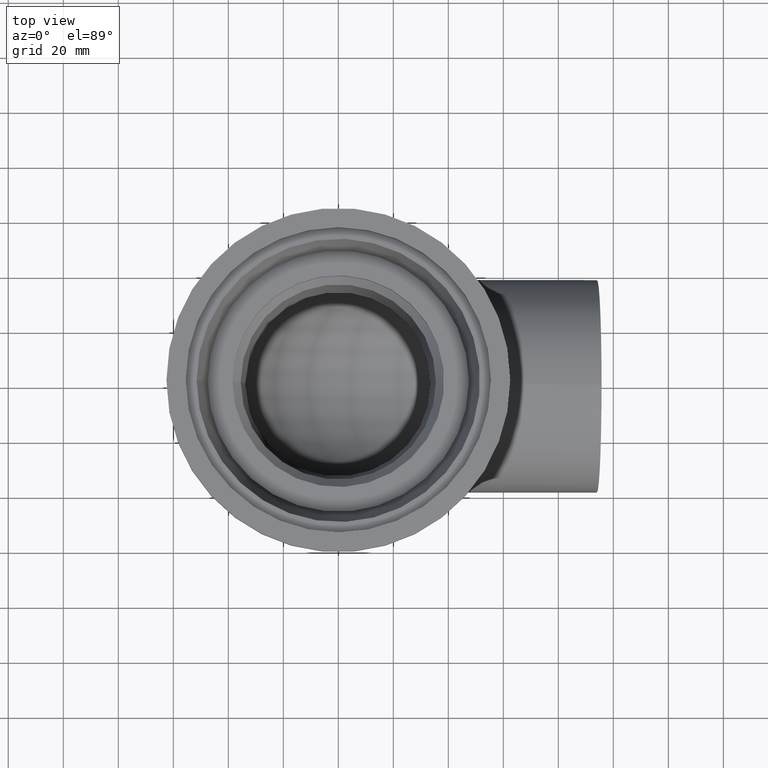
[diagram: clean part render]
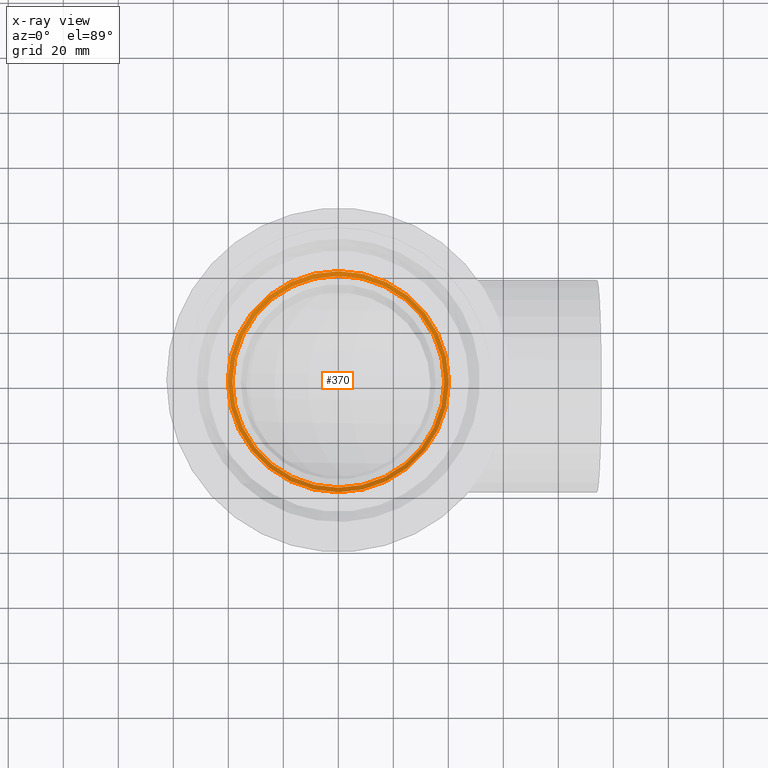
[diagram: x-ray — body ghosted, one internal face saturated and labeled with its STEP entity id]
A machine part, top view, then the same camera in x-ray: the body is ghosted and one INTERNAL B-rep face — a face not visible from any outside direction — is saturated and labeled: STEP entity #370.
In plain terms, the highlighted conical surface has half-angle 53.13 deg.
Its self-contained STEP definition (entity closure, byte-faithful):
#45=ORIENTED_EDGE('',*,*,#115,.F.);
#46=ORIENTED_EDGE('',*,*,#116,.F.);
#115=EDGE_CURVE('',#150,#150,#185,.T.);
#116=EDGE_CURVE('',#151,#151,#186,.T.);
#150=VERTEX_POINT('',#633);
#151=VERTEX_POINT('',#635);
#185=CIRCLE('',#419,40.2);
#186=CIRCLE('',#420,38.5);
#220=EDGE_LOOP('',(#45));
#221=EDGE_LOOP('',(#46));
#290=FACE_BOUND('',#220,.T.);
#291=FACE_BOUND('',#221,.T.);
#360=CONICAL_SURFACE('',#418,38.5,0.927295218001612);
#370=ADVANCED_FACE('',(#290,#291),#360,.T.);
#418=AXIS2_PLACEMENT_3D('',#631,#490,#491);
#419=AXIS2_PLACEMENT_3D('',#632,#492,#493);
#420=AXIS2_PLACEMENT_3D('',#634,#494,#495);
#490=DIRECTION('',(0.,0.,1.));
#491=DIRECTION('',(1.,0.,0.));
#492=DIRECTION('',(0.,0.,1.));
#493=DIRECTION('',(1.,0.,0.));
#494=DIRECTION('',(0.,0.,-1.));
#495=DIRECTION('',(-1.,0.,0.));
#631=CARTESIAN_POINT('',(0.,0.,-42.));
#632=CARTESIAN_POINT('',(0.,0.,-40.725));
#633=CARTESIAN_POINT('',(40.2,0.,-40.725));
#634=CARTESIAN_POINT('',(0.,0.,-42.));
#635=CARTESIAN_POINT('',(-38.5,0.,-42.));